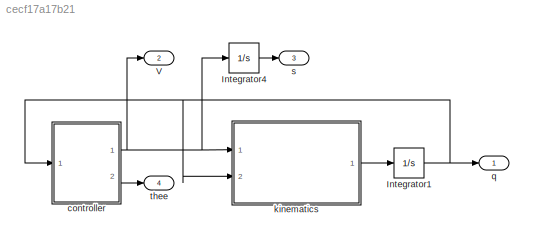
MODEL slx_cecf17a17b21
KIND model
CONFIG AbsTol = 1e-14
CONFIG EnableMultiTasking = off
CONFIG FixedStep = auto
CONFIG MaxStep = auto
CONFIG MinStep = auto
CONFIG RelTol = 1e-10
CONFIG SampleTimeConstraint = Unconstrained
CONFIG SolverName = VariableStepAuto
CONFIG StartTime = 0.0
CONFIG StopTime = 60
BLOCK [Integrator] Integrator1
  InitialCondition = q0
  Ports = [1, 1]
BLOCK [Integrator] Integrator4
  InitialCondition = s0
  Ports = [1, 1]
BLOCK [Outport] V
  Port = 2
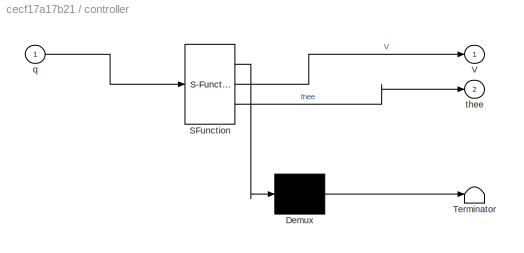
BLOCK [SubSystem] controller
  ErrorFcn = Stateflow.Translate.translate
  PermitHierarchicalResolution = ExplicitOnly
  Ports = [1, 2]
  RequestExecContextInheritance = off
  SFBlockType = MATLAB Function
  TreatAsAtomicUnit = on
BLOCK [Demux] controller/ Demux 
  Outputs = 1
  Ports = [1, 1]
BLOCK [S-Function] controller/ SFunction 
  EnableBusSupport = on
  FunctionName = sf_sfun
  PortCounts = [1 3]
  Ports = [1, 3]
  SFcnIsStateOwnerBlock = off
  SFunctionDeploymentMode = off
  Tag = Stateflow S-Function 1
BLOCK [Terminator] controller/ Terminator 
BLOCK [Outport] controller/V
BLOCK [Inport] controller/q
BLOCK [Outport] controller/thee
  Port = 2
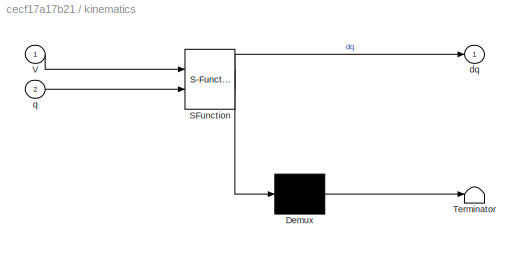
BLOCK [SubSystem] kinematics
  ErrorFcn = Stateflow.Translate.translate
  PermitHierarchicalResolution = ExplicitOnly
  Ports = [2, 1]
  RequestExecContextInheritance = off
  SFBlockType = MATLAB Function
  TreatAsAtomicUnit = on
BLOCK [Demux] kinematics/ Demux 
  Outputs = 1
  Ports = [1, 1]
BLOCK [S-Function] kinematics/ SFunction 
  EnableBusSupport = on
  FunctionName = sf_sfun
  PortCounts = [2 2]
  Ports = [2, 2]
  SFcnIsStateOwnerBlock = off
  SFunctionDeploymentMode = off
  Tag = Stateflow S-Function 4
BLOCK [Terminator] kinematics/ Terminator 
BLOCK [Inport] kinematics/V
BLOCK [Outport] kinematics/dq
BLOCK [Inport] kinematics/q
  Port = 2
BLOCK [Outport] q
BLOCK [Outport] s
  Port = 3
BLOCK [Outport] thee
  Port = 4
NET Integrator1:1 -> controller:1, kinematics:2, q:1
LINE Integrator4:1 -> s:1
NET controller:1 -> Integrator4:1, V:1, kinematics:1
LINE controller:2 -> thee:1
LINE kinematics:1 -> Integrator1:1
note: NET lines group one-source signal fan-out (src -> all destinations, sorted); 1:1 wires keep LINE
CHART controller states=1 transitions=1
  STATE_LABEL 'eML_blk_kernel()'
  STATE_LABEL 'SCRIPT:\nfunction [V,thee]= fcn(q)\n\nthe=atan2(sin(q(3)),cos(q(3)));\n\nk1=0.2;k2=0.375;\nvm=0.05;wm=0.78;\n\nal=atan2(-q(2),-q(1));    \nthee=atan2(sin(al-the),cos(al-the));\nd=sqrt(q(2)^2+q(1)^2);\nvp=k1*d;\nvd=vp*cos(thee*0.5)^2;\nv=min(vd,vm);\ndal=v*sin(thee)/d;\nwd=dal+2*k2*sin(thee*0.5);\nw=sign(wd)*min(abs(wd),wm);\nV=[v;w];\n'
CHART kinematics states=1 transitions=1
  STATE_LABEL 'eML_blk_kernel()'
  STATE_LABEL 'SCRIPT:\nfunction dq = fcn(V,q)\ndq=[ cos(q(3))  0\n     sin(q(3))  0\n      0         1]*V;\n\n\n\n'
CHART  states=0 transitions=0
CHART  states=0 transitions=0
